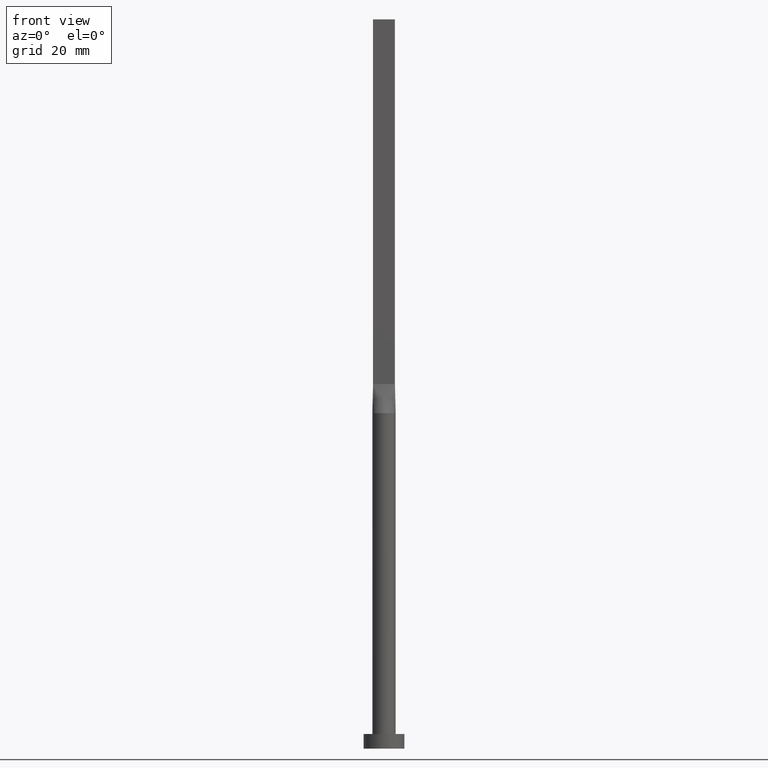
[diagram: clean part render]
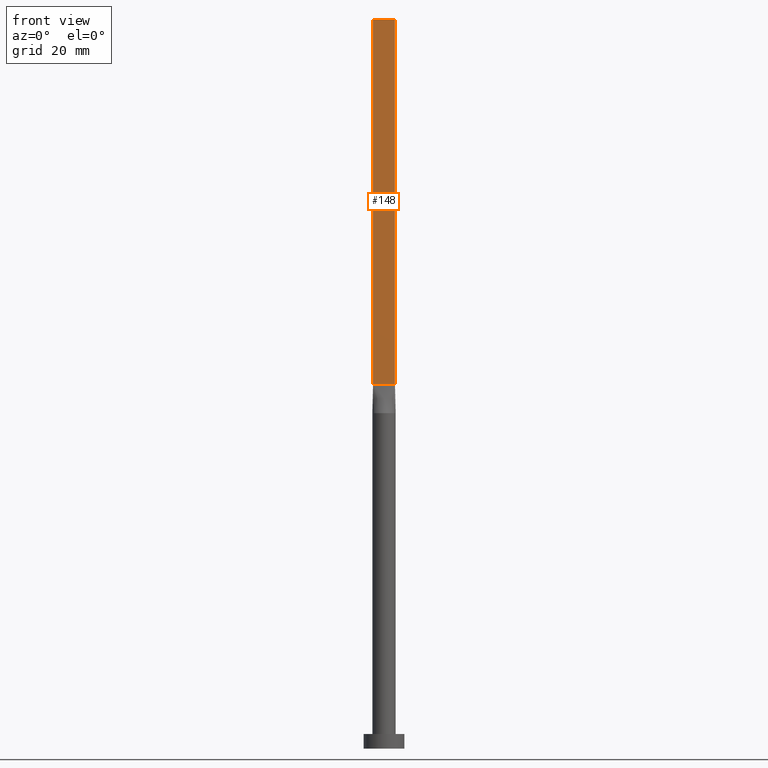
[diagram: same view with one face highlighted and labeled with its STEP entity id]
A machine part, front view. The second image highlights one B-rep face of the part: STEP entity #148.
In plain terms, the highlighted planar face has unit normal (0, 1, -0).
Its self-contained STEP definition (entity closure, byte-faithful):
#2 = VERTEX_POINT ( 'NONE', #522 ) ;
#19 = DIRECTION ( 'NONE',  ( 1.000000000000000000, -8.673617379884035472E-17, 0.000000000000000000 ) ) ;
#24 = LINE ( 'NONE', #342, #372 ) ;
#39 = LINE ( 'NONE', #82, #383 ) ;
#46 = ORIENTED_EDGE ( 'NONE', *, *, #156, .F. ) ;
#55 = VERTEX_POINT ( 'NONE', #395 ) ;
#64 = AXIS2_PLACEMENT_3D ( 'NONE', #217, #392, #251 ) ;
#76 = DIRECTION ( 'NONE',  ( 1.000000000000000000, -8.673617379884035472E-17, 0.000000000000000000 ) ) ;
#82 = CARTESIAN_POINT ( 'NONE',  ( -3.750000000000000000, -0.9999999999999991118, 125.0000000000000000 ) ) ;
#86 = FACE_OUTER_BOUND ( 'NONE', #358, .T. ) ;
#139 = DIRECTION ( 'NONE',  ( -0.000000000000000000, -0.000000000000000000, -1.000000000000000000 ) ) ;
#148 = ADVANCED_FACE ( 'NONE', ( #86 ), #521, .F. ) ;
#156 = EDGE_CURVE ( 'NONE', #55, #438, #312, .T. ) ;
#188 = VECTOR ( 'NONE', #577, 1000.000000000000000 ) ;
#213 = EDGE_CURVE ( 'NONE', #393, #438, #39, .T. ) ;
#217 = CARTESIAN_POINT ( 'NONE',  ( -3.750000000000000000, -0.9999999999999991118, 250.0000000000000000 ) ) ;
#251 = DIRECTION ( 'NONE',  ( -1.000000000000000000, 8.673617379884035472E-17, 0.000000000000000000 ) ) ;
#264 = VECTOR ( 'NONE', #139, 1000.000000000000000 ) ;
#312 = LINE ( 'NONE', #432, #188 ) ;
#342 = CARTESIAN_POINT ( 'NONE',  ( -3.750000000000000000, -0.9999999999999991118, 250.0000000000000000 ) ) ;
#348 = EDGE_CURVE ( 'NONE', #2, #393, #500, .T. ) ;
#353 = CARTESIAN_POINT ( 'NONE',  ( -3.750000000000000000, -0.9999999999999991118, 250.0000000000000000 ) ) ;
#358 = EDGE_LOOP ( 'NONE', ( #396, #46, #440, #419 ) ) ;
#372 = VECTOR ( 'NONE', #19, 1000.000000000000000 ) ;
#383 = VECTOR ( 'NONE', #76, 1000.000000000000000 ) ;
#392 = DIRECTION ( 'NONE',  ( 8.673617379884035472E-17, 1.000000000000000000, -0.000000000000000000 ) ) ;
#393 = VERTEX_POINT ( 'NONE', #514 ) ;
#395 = CARTESIAN_POINT ( 'NONE',  ( 3.750000000000000000, -0.9999999999999997780, 250.0000000000000000 ) ) ;
#396 = ORIENTED_EDGE ( 'NONE', *, *, #213, .T. ) ;
#419 = ORIENTED_EDGE ( 'NONE', *, *, #348, .T. ) ;
#432 = CARTESIAN_POINT ( 'NONE',  ( 3.750000000000000000, -0.9999999999999997780, 250.0000000000000000 ) ) ;
#438 = VERTEX_POINT ( 'NONE', #560 ) ;
#440 = ORIENTED_EDGE ( 'NONE', *, *, #496, .F. ) ;
#496 = EDGE_CURVE ( 'NONE', #2, #55, #24, .T. ) ;
#500 = LINE ( 'NONE', #353, #264 ) ;
#514 = CARTESIAN_POINT ( 'NONE',  ( -3.750000000000000000, -0.9999999999999991118, 125.0000000000000000 ) ) ;
#521 = PLANE ( 'NONE',  #64 ) ;
#522 = CARTESIAN_POINT ( 'NONE',  ( -3.750000000000000000, -0.9999999999999991118, 250.0000000000000000 ) ) ;
#560 = CARTESIAN_POINT ( 'NONE',  ( 3.750000000000000000, -0.9999999999999997780, 125.0000000000000000 ) ) ;
#577 = DIRECTION ( 'NONE',  ( -0.000000000000000000, -0.000000000000000000, -1.000000000000000000 ) ) ;